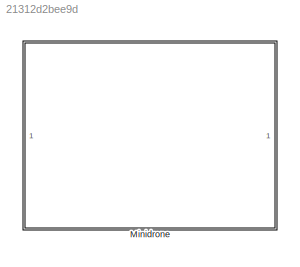
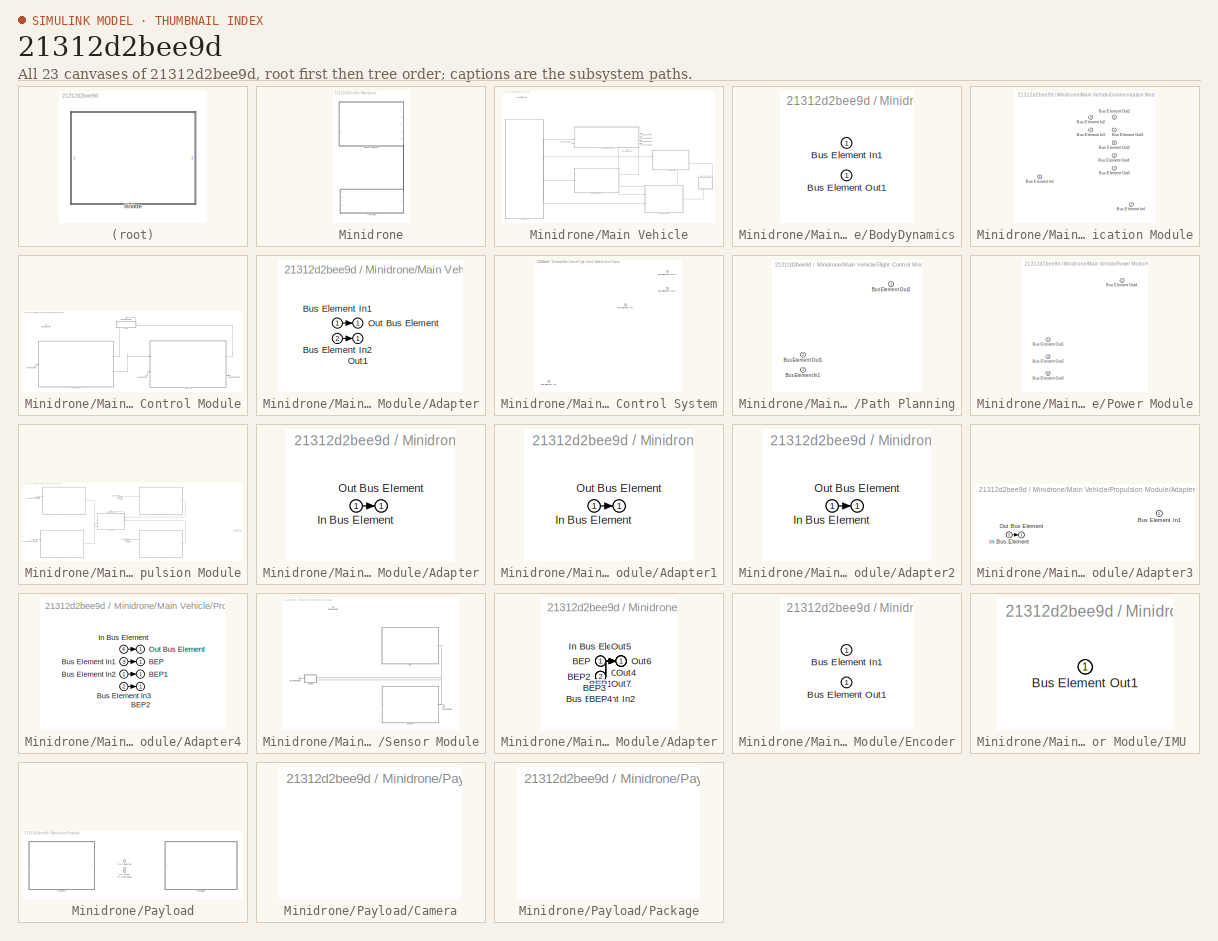
[diagram: thumbnail index - all 23 canvases of the model, root first then tree order]
MODEL slx_21312d2bee9d
KIND model
CONFIG AbsTol = auto
CONFIG EnableMultiTasking = off
CONFIG FixedStep = auto
CONFIG MaxStep = auto
CONFIG MinStep = auto
CONFIG RelTol = 1e-3
CONFIG SampleTimeConstraint = Unconstrained
CONFIG SolverName = VariableStepAuto
CONFIG StartTime = 0.0
CONFIG StopTime = 10.0
BLOCK [SubSystem] Minidrone
  PortSchema = {"entries":[{"content":{"headerSize":26,"margin":15,"minimumSpacing":25,"sides":[{"content":{"connectorIds":[]},"type":"ConnectorPlacement.EquallySpacedRectSide","uuid":"58971a95-43ec-4e42-90cb-f52848a43a78"},{"content":{"connectorIds":[],"side":"RIGHT"},"type":"ConnectorPlacement.EquallySpacedRectSide","uuid":"43bd139b-3ebd-443e-9d04-2758c166e5e5"},{"content":{"connectorIds":[],"side":"TOP"},"typ...<+277ch>
  Ports = []
  RequestExecContextInheritance = off
BLOCK [SubSystem] Minidrone/Main Vehicle
  PortSchema = {"entries":[{"content":{"headerSize":26,"margin":15,"minimumSpacing":25,"sides":[{"content":{"connectorIds":["In2"]},"type":"ConnectorPlacement.EquallySpacedRectSide","uuid":"58971a95-43ec-4e42-90cb-f52848a43a78"},{"content":{"connectorIds":["Out1","Out2","Out5"],"side":"RIGHT"},"type":"ConnectorPlacement.EquallySpacedRectSide","uuid":"43bd139b-3ebd-443e-9d04-2758c166e5e5"},{"content":{"connectorI...<+465ch>
  Ports = [2, 5]
  RequestExecContextInheritance = off
BLOCK [SubSystem] Minidrone/Main Vehicle/BodyDynamics
  PortSchema = {"entries":[{"content":{"headerSize":26,"margin":15,"minimumSpacing":25,"sides":[{"content":{"connectorIds":[]},"type":"ConnectorPlacement.EquallySpacedRectSide","uuid":"b95fdf5c-7c32-4cea-a1d5-46e14885b6c7"},{"content":{"connectorIds":[],"side":"RIGHT"},"type":"ConnectorPlacement.EquallySpacedRectSide","uuid":"406c0812-4108-47cf-89cd-ae4270ca37a8"},{"content":{"connectorIds":["Out1"],"side":"TOP"...<+432ch>
  Ports = [1, 1]
  RequestExecContextInheritance = off
BLOCK [Inport] Minidrone/Main Vehicle/BodyDynamics/Bus Element In1
BLOCK [Outport] Minidrone/Main Vehicle/BodyDynamics/Bus Element Out1
BLOCK [Inport] Minidrone/Main Vehicle/Bus Element In1
  Port = 2
BLOCK [Inport] Minidrone/Main Vehicle/Bus Element In2
BLOCK [Outport] Minidrone/Main Vehicle/Bus Element Out1
  Port = 4
BLOCK [Outport] Minidrone/Main Vehicle/Bus Element Out2
  Port = 5
BLOCK [Outport] Minidrone/Main Vehicle/Bus Element Out3
  Port = 3
BLOCK [Outport] Minidrone/Main Vehicle/Bus Element Out4
  Port = 2
BLOCK [Outport] Minidrone/Main Vehicle/Bus Element Out5
BLOCK [SubSystem] Minidrone/Main Vehicle/Communication Module
  PortSchema = {"entries":[{"content":{"headerSize":26,"margin":15,"minimumSpacing":25,"sides":[{"content":{"connectorIds":["In3","In4"]},"type":"ConnectorPlacement.EquallySpacedRectSide","uuid":"11745183-c785-42ff-bcc1-ca3285cfe892"},{"content":{"connectorIds":["Out1","Out5","Out3","Out4"],"side":"RIGHT"},"type":"ConnectorPlacement.EquallySpacedRectSide","uuid":"762d8cad-319e-4e1e-8739-8b76a70aa4c0"},{"content"...<+477ch>
  Ports = [4, 5]
  RequestExecContextInheritance = off
BLOCK [Inport] Minidrone/Main Vehicle/Communication Module/Bus Element In1
  Port = 4
BLOCK [Inport] Minidrone/Main Vehicle/Communication Module/Bus Element In2
  Port = 3
BLOCK [Inport] Minidrone/Main Vehicle/Communication Module/Bus Element In3
  Port = 2
BLOCK [Inport] Minidrone/Main Vehicle/Communication Module/Bus Element In4
BLOCK [Outport] Minidrone/Main Vehicle/Communication Module/Bus Element Out1
  Port = 4
BLOCK [Outport] Minidrone/Main Vehicle/Communication Module/Bus Element Out2
  Port = 2
BLOCK [Outport] Minidrone/Main Vehicle/Communication Module/Bus Element Out3
  Port = 5
BLOCK [Outport] Minidrone/Main Vehicle/Communication Module/Bus Element Out4
  Port = 3
BLOCK [Outport] Minidrone/Main Vehicle/Communication Module/Bus Element Out5
BLOCK [SubSystem] Minidrone/Main Vehicle/Flight Control Module
  PortSchema = {"entries":[{"content":{"headerSize":26,"margin":15,"minimumSpacing":25,"sides":[{"content":{"connectorIds":["In2"]},"type":"ConnectorPlacement.EquallySpacedRectSide","uuid":"11745183-c785-42ff-bcc1-ca3285cfe892"},{"content":{"connectorIds":["In3"],"side":"RIGHT"},"type":"ConnectorPlacement.EquallySpacedRectSide","uuid":"762d8cad-319e-4e1e-8739-8b76a70aa4c0"},{"content":{"connectorIds":["Out1","In...<+449ch>
  Ports = [3, 2]
  RequestExecContextInheritance = off
BLOCK [SubSystem] Minidrone/Main Vehicle/Flight Control Module/Adapter
  PortSchema = {"entries":[{"content":{"margin":10,"minimumSpacing":15,"sides":[{"content":{"connectorIds":[]},"type":"ConnectorPlacement.EquallySpacedRectSide","uuid":"8029eac4-1e93-42cb-93bf-2741aac18114"},{"content":{"connectorIds":[],"side":"RIGHT"},"type":"ConnectorPlacement.EquallySpacedRectSide","uuid":"880550d5-d396-4c9d-9596-cf9ff815056e"},{"content":{"connectorIds":["Out1"],"side":"TOP"},"type":"Connec...<+422ch>
  Ports = [2, 1]
  RequestExecContextInheritance = off
BLOCK [Inport] Minidrone/Main Vehicle/Flight Control Module/Adapter/Bus Element In1
BLOCK [Inport] Minidrone/Main Vehicle/Flight Control Module/Adapter/Bus Element In2
  Port = 2
BLOCK [Outport] Minidrone/Main Vehicle/Flight Control Module/Adapter/Out Bus Element
BLOCK [Outport] Minidrone/Main Vehicle/Flight Control Module/Adapter/Out1
BLOCK [Inport] Minidrone/Main Vehicle/Flight Control Module/Bus Element In1
  Port = 2
BLOCK [Inport] Minidrone/Main Vehicle/Flight Control Module/Bus Element In2
BLOCK [Inport] Minidrone/Main Vehicle/Flight Control Module/Bus Element In3
  Port = 3
BLOCK [Outport] Minidrone/Main Vehicle/Flight Control Module/Bus Element Out1
BLOCK [Outport] Minidrone/Main Vehicle/Flight Control Module/Bus Element Out2
  Port = 2
BLOCK [SubSystem] Minidrone/Main Vehicle/Flight Control Module/Control System
  PortSchema = {"entries":[{"content":{"headerSize":26,"margin":15,"minimumSpacing":25,"sides":[{"content":{"connectorIds":["In1","In2"]},"type":"ConnectorPlacement.EquallySpacedRectSide","uuid":"11745183-c785-42ff-bcc1-ca3285cfe892"},{"content":{"connectorIds":["Out1","Out2"],"side":"RIGHT"},"type":"ConnectorPlacement.EquallySpacedRectSide","uuid":"762d8cad-319e-4e1e-8739-8b76a70aa4c0"},{"content":{"connectorId...<+301ch>
  Ports = [2, 2]
  RequestExecContextInheritance = off
BLOCK [Inport] Minidrone/Main Vehicle/Flight Control Module/Control System/Bus Element In1
BLOCK [Inport] Minidrone/Main Vehicle/Flight Control Module/Control System/Bus Element In2
  Port = 2
BLOCK [Outport] Minidrone/Main Vehicle/Flight Control Module/Control System/Bus Element Out1
  Port = 2
BLOCK [Outport] Minidrone/Main Vehicle/Flight Control Module/Control System/Bus Element Out2
BLOCK [SubSystem] Minidrone/Main Vehicle/Flight Control Module/Path Planning
  PortSchema = {"entries":[{"content":{"headerSize":26,"margin":15,"minimumSpacing":25,"sides":[{"content":{"connectorIds":["In1"]},"type":"ConnectorPlacement.EquallySpacedRectSide","uuid":"11745183-c785-42ff-bcc1-ca3285cfe892"},{"content":{"connectorIds":["Out1","Out2"],"side":"RIGHT"},"type":"ConnectorPlacement.EquallySpacedRectSide","uuid":"762d8cad-319e-4e1e-8739-8b76a70aa4c0"},{"content":{"connectorIds":[],...<+295ch>
  Ports = [1, 2]
  RequestExecContextInheritance = off
BLOCK [Inport] Minidrone/Main Vehicle/Flight Control Module/Path Planning/Bus Element In1
BLOCK [Outport] Minidrone/Main Vehicle/Flight Control Module/Path Planning/Bus Element Out1
  Port = 2
BLOCK [Outport] Minidrone/Main Vehicle/Flight Control Module/Path Planning/Bus Element Out2
BLOCK [SubSystem] Minidrone/Main Vehicle/Power Module
  PortSchema = {"entries":[{"content":{"headerSize":26,"margin":15,"minimumSpacing":25,"sides":[{"content":{"connectorIds":[]},"type":"ConnectorPlacement.EquallySpacedRectSide","uuid":"11745183-c785-42ff-bcc1-ca3285cfe892"},{"content":{"connectorIds":["Out4","Out2","Out1","Out3"],"side":"RIGHT"},"type":"ConnectorPlacement.EquallySpacedRectSide","uuid":"762d8cad-319e-4e1e-8739-8b76a70aa4c0"},{"content":{"connecto...<+304ch>
  Ports = [0, 4]
  RequestExecContextInheritance = off
BLOCK [Outport] Minidrone/Main Vehicle/Power Module/Bus Element Out1
BLOCK [Outport] Minidrone/Main Vehicle/Power Module/Bus Element Out2
  Port = 3
BLOCK [Outport] Minidrone/Main Vehicle/Power Module/Bus Element Out3
  Port = 4
BLOCK [Outport] Minidrone/Main Vehicle/Power Module/Bus Element Out4
  Port = 2
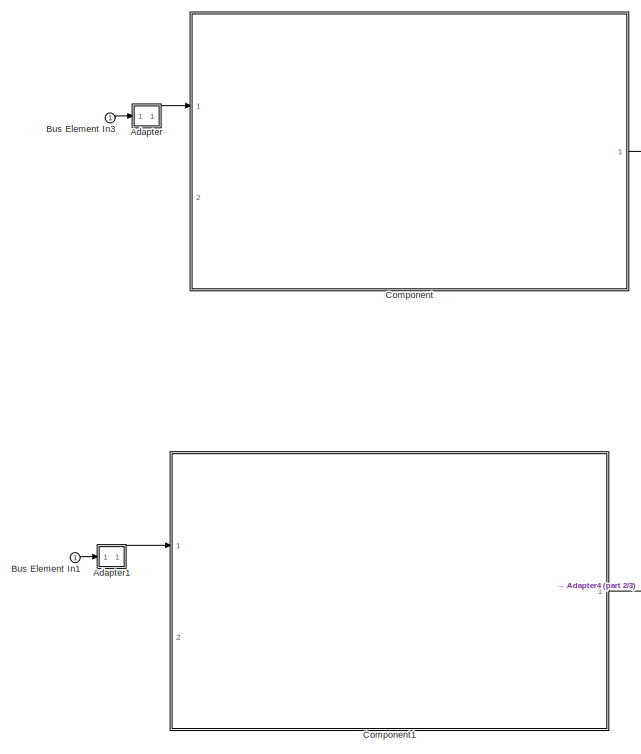
[diagram: Minidrone/Main Vehicle/Propulsion Module - part 1/3, left side, full height]
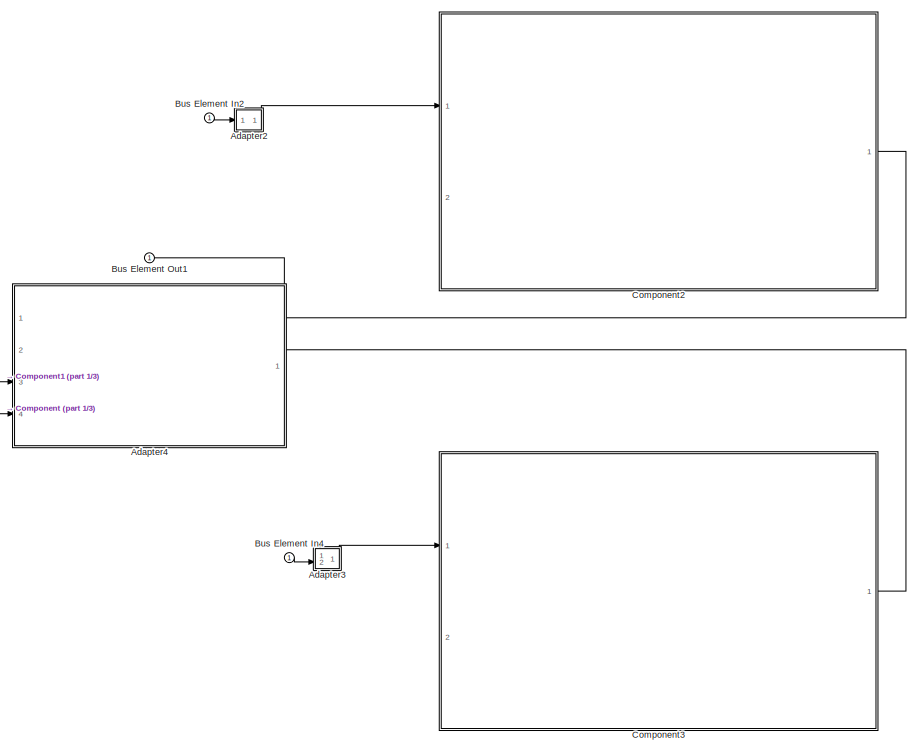
[diagram: Minidrone/Main Vehicle/Propulsion Module - part 2/3, center side, full height]
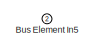
[diagram: Minidrone/Main Vehicle/Propulsion Module - part 3/3, middle right region]
BLOCK [SubSystem] Minidrone/Main Vehicle/Propulsion Module
  PortSchema = {"entries":[{"content":{"headerSize":26,"margin":15,"minimumSpacing":25,"sides":[{"content":{"connectorIds":["In1","In2"]},"type":"ConnectorPlacement.EquallySpacedRectSide","uuid":"11745183-c785-42ff-bcc1-ca3285cfe892"},{"content":{"connectorIds":["Out1"],"side":"RIGHT"},"type":"ConnectorPlacement.EquallySpacedRectSide","uuid":"762d8cad-319e-4e1e-8739-8b76a70aa4c0"},{"content":{"connectorIds":[],"...<+294ch>
  Ports = [2, 1]
  RequestExecContextInheritance = off
BLOCK [SubSystem] Minidrone/Main Vehicle/Propulsion Module/Adapter
  PortSchema = {"entries":[{"content":{"margin":10,"minimumSpacing":15,"sides":[{"content":{"connectorIds":["In1"]},"type":"ConnectorPlacement.EquallySpacedRectSide","uuid":"8029eac4-1e93-42cb-93bf-2741aac18114"},{"content":{"connectorIds":["Out1"],"side":"RIGHT"},"type":"ConnectorPlacement.EquallySpacedRectSide","uuid":"880550d5-d396-4c9d-9596-cf9ff815056e"},{"content":{"connectorIds":[],"side":"TOP"},"type":"C...<+272ch>  <repeated x3 — deduplicated; at blocks: Adapter, Adapter1, Adapter2>
  Ports = [1, 1]
  RequestExecContextInheritance = off
BLOCK [Inport] Minidrone/Main Vehicle/Propulsion Module/Adapter/In Bus Element
BLOCK [Outport] Minidrone/Main Vehicle/Propulsion Module/Adapter/Out Bus Element
BLOCK [SubSystem] Minidrone/Main Vehicle/Propulsion Module/Adapter1
  Ports = [1, 1]
  RequestExecContextInheritance = off
BLOCK [Inport] Minidrone/Main Vehicle/Propulsion Module/Adapter1/In Bus Element
BLOCK [Outport] Minidrone/Main Vehicle/Propulsion Module/Adapter1/Out Bus Element
BLOCK [SubSystem] Minidrone/Main Vehicle/Propulsion Module/Adapter2
  Ports = [1, 1]
  RequestExecContextInheritance = off
BLOCK [Inport] Minidrone/Main Vehicle/Propulsion Module/Adapter2/In Bus Element
BLOCK [Outport] Minidrone/Main Vehicle/Propulsion Module/Adapter2/Out Bus Element
BLOCK [SubSystem] Minidrone/Main Vehicle/Propulsion Module/Adapter3
  PortSchema = {"entries":[{"content":{"margin":10,"minimumSpacing":15,"sides":[{"content":{"connectorIds":["In2"]},"type":"ConnectorPlacement.EquallySpacedRectSide","uuid":"8029eac4-1e93-42cb-93bf-2741aac18114"},{"content":{"connectorIds":["Out1"],"side":"RIGHT"},"type":"ConnectorPlacement.EquallySpacedRectSide","uuid":"880550d5-d396-4c9d-9596-cf9ff815056e"},{"content":{"connectorIds":["In1"],"side":"TOP"},"typ...<+277ch>
  Ports = [2, 1]
  RequestExecContextInheritance = off
BLOCK [Inport] Minidrone/Main Vehicle/Propulsion Module/Adapter3/Bus Element In1
BLOCK [Inport] Minidrone/Main Vehicle/Propulsion Module/Adapter3/In Bus Element
  Port = 2
BLOCK [Outport] Minidrone/Main Vehicle/Propulsion Module/Adapter3/Out Bus Element
BLOCK [SubSystem] Minidrone/Main Vehicle/Propulsion Module/Adapter4
  PortSchema = {"entries":[{"content":{"margin":10,"minimumSpacing":15,"sides":[{"content":{"connectorIds":["In4","In3"]},"type":"ConnectorPlacement.EquallySpacedRectSide","uuid":"b95fdf5c-7c32-4cea-a1d5-46e14885b6c7"},{"content":{"connectorIds":["In1","In2"],"side":"RIGHT"},"type":"ConnectorPlacement.EquallySpacedRectSide","uuid":"406c0812-4108-47cf-89cd-ae4270ca37a8"},{"content":{"connectorIds":["Out1"],"side"...<+289ch>
  Ports = [4, 1]
  RequestExecContextInheritance = off
BLOCK [Outport] Minidrone/Main Vehicle/Propulsion Module/Adapter4/BEP
BLOCK [Outport] Minidrone/Main Vehicle/Propulsion Module/Adapter4/BEP1
BLOCK [Outport] Minidrone/Main Vehicle/Propulsion Module/Adapter4/BEP2
BLOCK [Inport] Minidrone/Main Vehicle/Propulsion Module/Adapter4/Bus Element In1
  Port = 3
BLOCK [Inport] Minidrone/Main Vehicle/Propulsion Module/Adapter4/Bus Element In2
BLOCK [Inport] Minidrone/Main Vehicle/Propulsion Module/Adapter4/Bus Element In3
  Port = 2
BLOCK [Inport] Minidrone/Main Vehicle/Propulsion Module/Adapter4/In Bus Element
  Port = 4
BLOCK [Outport] Minidrone/Main Vehicle/Propulsion Module/Adapter4/Out Bus Element
BLOCK [Inport] Minidrone/Main Vehicle/Propulsion Module/Bus Element In1
BLOCK [Inport] Minidrone/Main Vehicle/Propulsion Module/Bus Element In2
BLOCK [Inport] Minidrone/Main Vehicle/Propulsion Module/Bus Element In3
BLOCK [Inport] Minidrone/Main Vehicle/Propulsion Module/Bus Element In4
BLOCK [Inport] Minidrone/Main Vehicle/Propulsion Module/Bus Element In5
  Port = 2
BLOCK [Outport] Minidrone/Main Vehicle/Propulsion Module/Bus Element Out1
BLOCK [ModelReference] Minidrone/Main Vehicle/Propulsion Module/Component
  ModelNameDialog = MotorPropellerModule.slx
  ModelReferenceVersion = 1.7
  PortSchema = {"entries":[{"content":{"headerSize":38,"margin":15,"minimumSpacing":25,"sides":[{"content":{"connectorIds":["In1","In2"]},"type":"ConnectorPlacement.EquallySpacedRectSide","uuid":"7b7af72e-aa04-46fd-a07e-d8d59d662379"},{"content":{"connectorIds":["Out1"],"side":"RIGHT"},"type":"ConnectorPlacement.EquallySpacedRectSide","uuid":"fdfbdd79-f6fe-4609-8655-22f9d8d17dc0"},{"content":{"connectorIds":[],"...<+294ch>  <repeated x4 — deduplicated; at blocks: Component, Component1, Component2, Component3>
  Ports = [2, 1]
BLOCK [ModelReference] Minidrone/Main Vehicle/Propulsion Module/Component1
  ModelNameDialog = MotorPropellerModule.slx
  ModelReferenceVersion = 1.7
  Ports = [2, 1]
BLOCK [ModelReference] Minidrone/Main Vehicle/Propulsion Module/Component2
  ModelNameDialog = MotorPropellerModule.slx
  ModelReferenceVersion = 1.7
  Ports = [2, 1]
BLOCK [ModelReference] Minidrone/Main Vehicle/Propulsion Module/Component3
  ModelNameDialog = MotorPropellerModule.slx
  ModelReferenceVersion = 1.7
  Ports = [2, 1]
BLOCK [SubSystem] Minidrone/Main Vehicle/Sensor Module
  PortSchema = {"entries":[{"content":{"headerSize":26,"margin":15,"minimumSpacing":25,"sides":[{"content":{"connectorIds":["In1","Out1"]},"type":"ConnectorPlacement.EquallySpacedRectSide","uuid":"11745183-c785-42ff-bcc1-ca3285cfe892"},{"content":{"connectorIds":["In2"],"side":"RIGHT"},"type":"ConnectorPlacement.EquallySpacedRectSide","uuid":"762d8cad-319e-4e1e-8739-8b76a70aa4c0"},{"content":{"connectorIds":[],"...<+294ch>
  Ports = [2, 1]
  RequestExecContextInheritance = off
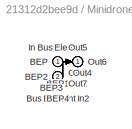
BLOCK [SubSystem] Minidrone/Main Vehicle/Sensor Module/Adapter
  PortSchema = {"entries":[{"content":{"margin":10,"minimumSpacing":15,"sides":[{"content":{"connectorIds":["Out1"]},"type":"ConnectorPlacement.EquallySpacedRectSide","uuid":"58971a95-43ec-4e42-90cb-f52848a43a78"},{"content":{"connectorIds":["In1","In2"],"side":"RIGHT"},"type":"ConnectorPlacement.EquallySpacedRectSide","uuid":"43bd139b-3ebd-443e-9d04-2758c166e5e5"},{"content":{"connectorIds":[],"side":"TOP"},"ty...<+422ch>
  Ports = [2, 1]
  RequestExecContextInheritance = off
BLOCK [Inport] Minidrone/Main Vehicle/Sensor Module/Adapter/BEP
BLOCK [Inport] Minidrone/Main Vehicle/Sensor Module/Adapter/BEP1
BLOCK [Inport] Minidrone/Main Vehicle/Sensor Module/Adapter/BEP2
  Port = 2
BLOCK [Inport] Minidrone/Main Vehicle/Sensor Module/Adapter/BEP3
  Port = 2
BLOCK [Inport] Minidrone/Main Vehicle/Sensor Module/Adapter/BEP4
  Port = 2
BLOCK [Inport] Minidrone/Main Vehicle/Sensor Module/Adapter/Bus Element In2
  Port = 2
BLOCK [Inport] Minidrone/Main Vehicle/Sensor Module/Adapter/In Bus Element
BLOCK [Outport] Minidrone/Main Vehicle/Sensor Module/Adapter/Out1
BLOCK [Outport] Minidrone/Main Vehicle/Sensor Module/Adapter/Out2
BLOCK [Outport] Minidrone/Main Vehicle/Sensor Module/Adapter/Out3
BLOCK [Outport] Minidrone/Main Vehicle/Sensor Module/Adapter/Out4
BLOCK [Outport] Minidrone/Main Vehicle/Sensor Module/Adapter/Out5
BLOCK [Outport] Minidrone/Main Vehicle/Sensor Module/Adapter/Out6
BLOCK [Outport] Minidrone/Main Vehicle/Sensor Module/Adapter/Out7
BLOCK [Inport] Minidrone/Main Vehicle/Sensor Module/Bus Element In1
  Port = 2
BLOCK [Inport] Minidrone/Main Vehicle/Sensor Module/Bus Element In2
BLOCK [Outport] Minidrone/Main Vehicle/Sensor Module/Bus Element Out1
BLOCK [SubSystem] Minidrone/Main Vehicle/Sensor Module/Encoder
  PortSchema = {"entries":[{"content":{"headerSize":26,"margin":15,"minimumSpacing":25,"sides":[{"content":{"connectorIds":["Out1"]},"type":"ConnectorPlacement.EquallySpacedRectSide","uuid":"58971a95-43ec-4e42-90cb-f52848a43a78"},{"content":{"connectorIds":["In1"],"side":"RIGHT"},"type":"ConnectorPlacement.EquallySpacedRectSide","uuid":"43bd139b-3ebd-443e-9d04-2758c166e5e5"},{"content":{"connectorIds":[],"side":...<+288ch>
  Ports = [1, 1]
  RequestExecContextInheritance = off
BLOCK [Inport] Minidrone/Main Vehicle/Sensor Module/Encoder/Bus Element In1
BLOCK [Outport] Minidrone/Main Vehicle/Sensor Module/Encoder/Bus Element Out1
BLOCK [SubSystem] Minidrone/Main Vehicle/Sensor Module/IMU 
  PortSchema = {"entries":[{"content":{"headerSize":26,"margin":15,"minimumSpacing":25,"sides":[{"content":{"connectorIds":["Out1"]},"type":"ConnectorPlacement.EquallySpacedRectSide","uuid":"58971a95-43ec-4e42-90cb-f52848a43a78"},{"content":{"connectorIds":[],"side":"RIGHT"},"type":"ConnectorPlacement.EquallySpacedRectSide","uuid":"43bd139b-3ebd-443e-9d04-2758c166e5e5"},{"content":{"connectorIds":[],"side":"TOP"...<+283ch>
  Ports = [0, 1]
  RequestExecContextInheritance = off
BLOCK [Outport] Minidrone/Main Vehicle/Sensor Module/IMU /Bus Element Out1
BLOCK [SubSystem] Minidrone/Payload
  PortSchema = {"entries":[{"content":{"headerSize":38,"margin":15,"minimumSpacing":25,"sides":[{"content":{"connectorIds":[]},"type":"ConnectorPlacement.EquallySpacedRectSide","uuid":"bb20ca61-cc69-46ba-bbf8-c616735728e4"},{"content":{"connectorIds":[],"side":"RIGHT"},"type":"ConnectorPlacement.EquallySpacedRectSide","uuid":"ae599026-5f79-458c-a34f-615f09cd605e"},{"content":{"connectorIds":["In1","In2","Out1"],...<+295ch>
  Ports = [2, 1]
  RequestExecContextInheritance = off
  Variant = on
BLOCK [SubSystem] Minidrone/Payload/Camera
  PortSchema = {"entries":[{"content":{"headerSize":26,"margin":15,"minimumSpacing":25,"sides":[{"content":{"connectorIds":[]},"type":"ConnectorPlacement.EquallySpacedRectSide","uuid":"62dbea54-6b04-428b-9082-afe16aec4c16"},{"content":{"connectorIds":[],"side":"RIGHT"},"type":"ConnectorPlacement.EquallySpacedRectSide","uuid":"bd8afa16-d094-436c-bc9f-80902768e85a"},{"content":{"connectorIds":[],"side":"TOP"},"typ...<+277ch>
  Ports = []
  RequestExecContextInheritance = off
  VariantControl = payload==1
BLOCK [Inport] Minidrone/Payload/PL Command
  Port = 2
BLOCK [Inport] Minidrone/Payload/PL Coupling
BLOCK [Outport] Minidrone/Payload/PL State
BLOCK [SubSystem] Minidrone/Payload/Package
  PortSchema = {"entries":[{"content":{"headerSize":26,"margin":15,"minimumSpacing":25,"sides":[{"content":{"connectorIds":[]},"type":"ConnectorPlacement.EquallySpacedRectSide","uuid":"62dbea54-6b04-428b-9082-afe16aec4c16"},{"content":{"connectorIds":[],"side":"RIGHT"},"type":"ConnectorPlacement.EquallySpacedRectSide","uuid":"bd8afa16-d094-436c-bc9f-80902768e85a"},{"content":{"connectorIds":[],"side":"TOP"},"typ...<+277ch>
  Ports = []
  RequestExecContextInheritance = off
  VariantControl = payload==2
LINE Minidrone/Main Vehicle/BodyDynamics:1 -> Minidrone/Main Vehicle/Sensor Module:2
LINE Minidrone/Main Vehicle/Bus Element In1:1 -> Minidrone/Main Vehicle/Communication Module:4
LINE Minidrone/Main Vehicle/Bus Element In2:1 -> Minidrone/Main Vehicle/Communication Module:2
LINE Minidrone/Main Vehicle/Communication Module:1 -> Minidrone/Main Vehicle/Bus Element Out5:1
LINE Minidrone/Main Vehicle/Communication Module:2 -> Minidrone/Main Vehicle/Flight Control Module:1
LINE Minidrone/Main Vehicle/Communication Module:3 -> Minidrone/Main Vehicle/Bus Element Out4:1
LINE Minidrone/Main Vehicle/Communication Module:4 -> Minidrone/Main Vehicle/Bus Element Out1:1
LINE Minidrone/Main Vehicle/Communication Module:5 -> Minidrone/Main Vehicle/Bus Element Out2:1
LINE Minidrone/Main Vehicle/Flight Control Module/Adapter/Bus Element In1:1 -> Minidrone/Main Vehicle/Flight Control Module/Adapter/Out Bus Element:1
LINE Minidrone/Main Vehicle/Flight Control Module/Adapter/Bus Element In2:1 -> Minidrone/Main Vehicle/Flight Control Module/Adapter/Out1:1
LINE Minidrone/Main Vehicle/Flight Control Module/Adapter:1 -> Minidrone/Main Vehicle/Flight Control Module/Bus Element Out1:1
LINE Minidrone/Main Vehicle/Flight Control Module/Bus Element In2:1 -> Minidrone/Main Vehicle/Flight Control Module/Path Planning:1
LINE Minidrone/Main Vehicle/Flight Control Module/Bus Element In3:1 -> Minidrone/Main Vehicle/Flight Control Module/Control System:2
LINE Minidrone/Main Vehicle/Flight Control Module/Control System:1 -> Minidrone/Main Vehicle/Flight Control Module/Adapter:2
LINE Minidrone/Main Vehicle/Flight Control Module/Control System:2 -> Minidrone/Main Vehicle/Flight Control Module/Bus Element Out2:1
LINE Minidrone/Main Vehicle/Flight Control Module/Path Planning:1 -> Minidrone/Main Vehicle/Flight Control Module/Adapter:1
LINE Minidrone/Main Vehicle/Flight Control Module/Path Planning:2 -> Minidrone/Main Vehicle/Flight Control Module/Control System:1
LINE Minidrone/Main Vehicle/Flight Control Module:1 -> Minidrone/Main Vehicle/Communication Module:1
LINE Minidrone/Main Vehicle/Flight Control Module:2 -> Minidrone/Main Vehicle/Propulsion Module:1
LINE Minidrone/Main Vehicle/Power Module:1 -> Minidrone/Main Vehicle/Flight Control Module:2
LINE Minidrone/Main Vehicle/Power Module:2 -> Minidrone/Main Vehicle/Sensor Module:1
LINE Minidrone/Main Vehicle/Power Module:3 -> Minidrone/Main Vehicle/Propulsion Module:2
LINE Minidrone/Main Vehicle/Power Module:4 -> Minidrone/Main Vehicle/Communication Module:3
LINE Minidrone/Main Vehicle/Propulsion Module/Adapter/In Bus Element:1 -> Minidrone/Main Vehicle/Propulsion Module/Adapter/Out Bus Element:1
LINE Minidrone/Main Vehicle/Propulsion Module/Adapter1/In Bus Element:1 -> Minidrone/Main Vehicle/Propulsion Module/Adapter1/Out Bus Element:1
LINE Minidrone/Main Vehicle/Propulsion Module/Adapter1:1 -> Minidrone/Main Vehicle/Propulsion Module/Component1:1
LINE Minidrone/Main Vehicle/Propulsion Module/Adapter2/In Bus Element:1 -> Minidrone/Main Vehicle/Propulsion Module/Adapter2/Out Bus Element:1
LINE Minidrone/Main Vehicle/Propulsion Module/Adapter2:1 -> Minidrone/Main Vehicle/Propulsion Module/Component2:1
LINE Minidrone/Main Vehicle/Propulsion Module/Adapter3/In Bus Element:1 -> Minidrone/Main Vehicle/Propulsion Module/Adapter3/Out Bus Element:1
LINE Minidrone/Main Vehicle/Propulsion Module/Adapter3:1 -> Minidrone/Main Vehicle/Propulsion Module/Component3:1
LINE Minidrone/Main Vehicle/Propulsion Module/Adapter4/Bus Element In1:1 -> Minidrone/Main Vehicle/Propulsion Module/Adapter4/BEP:1
LINE Minidrone/Main Vehicle/Propulsion Module/Adapter4/Bus Element In2:1 -> Minidrone/Main Vehicle/Propulsion Module/Adapter4/BEP1:1
LINE Minidrone/Main Vehicle/Propulsion Module/Adapter4/Bus Element In3:1 -> Minidrone/Main Vehicle/Propulsion Module/Adapter4/BEP2:1
LINE Minidrone/Main Vehicle/Propulsion Module/Adapter4/In Bus Element:1 -> Minidrone/Main Vehicle/Propulsion Module/Adapter4/Out Bus Element:1
LINE Minidrone/Main Vehicle/Propulsion Module/Adapter4:1 -> Minidrone/Main Vehicle/Propulsion Module/Bus Element Out1:1
LINE Minidrone/Main Vehicle/Propulsion Module/Adapter:1 -> Minidrone/Main Vehicle/Propulsion Module/Component:1
LINE Minidrone/Main Vehicle/Propulsion Module/Bus Element In1:1 -> Minidrone/Main Vehicle/Propulsion Module/Adapter1:1
LINE Minidrone/Main Vehicle/Propulsion Module/Bus Element In2:1 -> Minidrone/Main Vehicle/Propulsion Module/Adapter2:1
LINE Minidrone/Main Vehicle/Propulsion Module/Bus Element In3:1 -> Minidrone/Main Vehicle/Propulsion Module/Adapter:1
LINE Minidrone/Main Vehicle/Propulsion Module/Bus Element In4:1 -> Minidrone/Main Vehicle/Propulsion Module/Adapter3:2
LINE Minidrone/Main Vehicle/Propulsion Module/Component1:1 -> Minidrone/Main Vehicle/Propulsion Module/Adapter4:3
LINE Minidrone/Main Vehicle/Propulsion Module/Component2:1 -> Minidrone/Main Vehicle/Propulsion Module/Adapter4:1
LINE Minidrone/Main Vehicle/Propulsion Module/Component3:1 -> Minidrone/Main Vehicle/Propulsion Module/Adapter4:2
LINE Minidrone/Main Vehicle/Propulsion Module/Component:1 -> Minidrone/Main Vehicle/Propulsion Module/Adapter4:4
LINE Minidrone/Main Vehicle/Propulsion Module:1 -> Minidrone/Main Vehicle/BodyDynamics:1
LINE Minidrone/Main Vehicle/Sensor Module/Adapter/BEP1:1 -> Minidrone/Main Vehicle/Sensor Module/Adapter/Out2:1
LINE Minidrone/Main Vehicle/Sensor Module/Adapter/BEP2:1 -> Minidrone/Main Vehicle/Sensor Module/Adapter/Out5:1
LINE Minidrone/Main Vehicle/Sensor Module/Adapter/BEP3:1 -> Minidrone/Main Vehicle/Sensor Module/Adapter/Out6:1
LINE Minidrone/Main Vehicle/Sensor Module/Adapter/BEP4:1 -> Minidrone/Main Vehicle/Sensor Module/Adapter/Out7:1
LINE Minidrone/Main Vehicle/Sensor Module/Adapter/BEP:1 -> Minidrone/Main Vehicle/Sensor Module/Adapter/Out1:1
LINE Minidrone/Main Vehicle/Sensor Module/Adapter/Bus Element In2:1 -> Minidrone/Main Vehicle/Sensor Module/Adapter/Out4:1
LINE Minidrone/Main Vehicle/Sensor Module/Adapter/In Bus Element:1 -> Minidrone/Main Vehicle/Sensor Module/Adapter/Out3:1
LINE Minidrone/Main Vehicle/Sensor Module/Adapter:1 -> Minidrone/Main Vehicle/Sensor Module/Bus Element Out1:1
LINE Minidrone/Main Vehicle/Sensor Module/Bus Element In1:1 -> Minidrone/Main Vehicle/Sensor Module/Encoder:1
LINE Minidrone/Main Vehicle/Sensor Module/Encoder:1 -> Minidrone/Main Vehicle/Sensor Module/Adapter:2
LINE Minidrone/Main Vehicle/Sensor Module/IMU :1 -> Minidrone/Main Vehicle/Sensor Module/Adapter:1
LINE Minidrone/Main Vehicle/Sensor Module:1 -> Minidrone/Main Vehicle/Flight Control Module:3
LINE Minidrone/Main Vehicle:3 -> Minidrone/Payload:1
LINE Minidrone/Main Vehicle:4 -> Minidrone/Payload:2
LINE Minidrone/Payload:1 -> Minidrone/Main Vehicle:1
